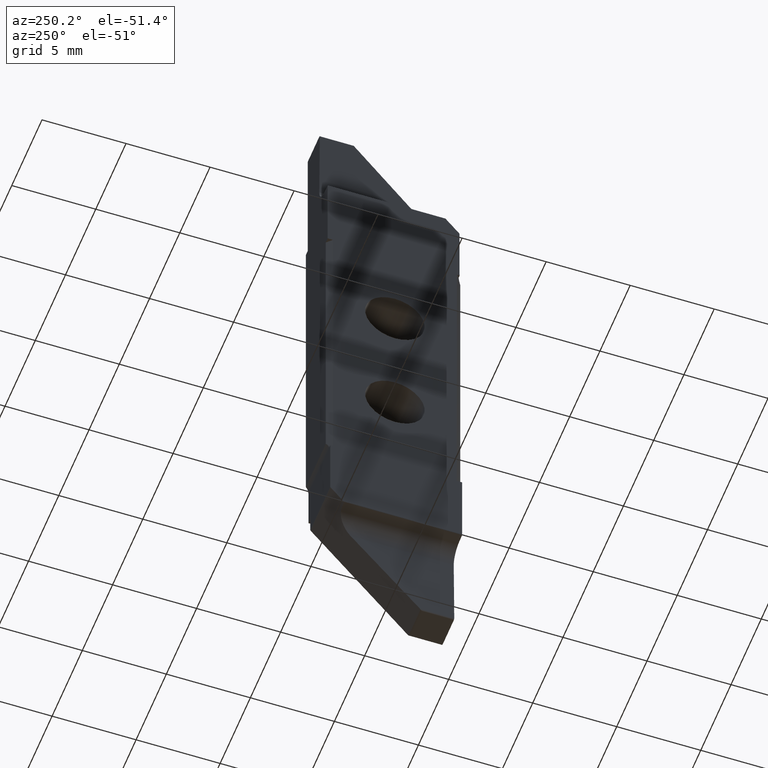
[diagram: clean part render]
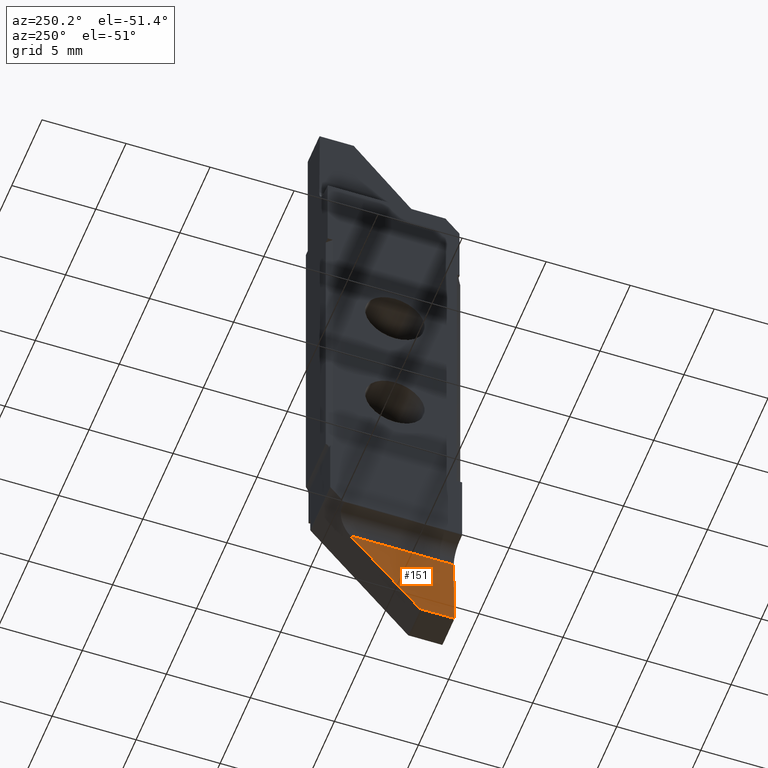
[diagram: same view with one face highlighted and labeled with its STEP entity id]
A machine part, auxiliary view. The second image highlights one B-rep face of the part: STEP entity #151.
In plain terms, the highlighted planar face has unit normal (0.9998, 0, -0.0175).
Its self-contained STEP definition (entity closure, byte-faithful):
#151 = ADVANCED_FACE ( 'NONE', ( #1334 ), #515, .F. ) ;
#161 = VERTEX_POINT ( 'NONE', #553 ) ;
#196 = VERTEX_POINT ( 'NONE', #1098 ) ;
#202 = VERTEX_POINT ( 'NONE', #838 ) ;
#295 = VERTEX_POINT ( 'NONE', #818 ) ;
#332 = EDGE_CURVE ( 'NONE', #196, #295, #928, .T. ) ;
#382 = VECTOR ( 'NONE', #518, 1000.000000000000000 ) ;
#419 = CARTESIAN_POINT ( 'NONE',  ( 1.404730389569310800, -4.000000000000000000, -14.00000000000000200 ) ) ;
#462 = CARTESIAN_POINT ( 'NONE',  ( 1.386970691753576900, 3.006177553973360600, -15.01745240643728800 ) ) ;
#477 = LINE ( 'NONE', #826, #1222 ) ;
#498 = VECTOR ( 'NONE', #958, 1000.000000000000100 ) ;
#515 = PLANE ( 'NONE',  #950 ) ;
#518 = DIRECTION ( 'NONE',  ( 0.0000000000000000000, 1.000000000000000000, 0.0000000000000000000 ) ) ;
#553 = CARTESIAN_POINT ( 'NONE',  ( 1.301420775825264100, -4.000000000000000000, -19.91860380748501700 ) ) ;
#557 = DIRECTION ( 'NONE',  ( 0.01745240643728355000, 0.0000000000000000000, 0.9998476951563911600 ) ) ;
#586 = VECTOR ( 'NONE', #1191, 1000.000000000000200 ) ;
#679 = ORIENTED_EDGE ( 'NONE', *, *, #1241, .T. ) ;
#693 = ORIENTED_EDGE ( 'NONE', *, *, #1356, .T. ) ;
#699 = ORIENTED_EDGE ( 'NONE', *, *, #1327, .F. ) ;
#720 = DIRECTION ( 'NONE',  ( 0.9998476951563912700, 0.0000000000000000000, -0.01745240643728355300 ) ) ;
#804 = DIRECTION ( 'NONE',  ( -0.0000000000000000000, -1.000000000000000000, -0.0000000000000000000 ) ) ;
#818 = CARTESIAN_POINT ( 'NONE',  ( 1.386970691753576900, 2.152433614991401200, -15.01745240643729000 ) ) ;
#826 = CARTESIAN_POINT ( 'NONE',  ( 1.301420775825264100, -4.000000000000000000, -19.91860380748501700 ) ) ;
#828 = ORIENTED_EDGE ( 'NONE', *, *, #332, .T. ) ;
#838 = CARTESIAN_POINT ( 'NONE',  ( 1.301420775825264100, -1.960120717971741700, -19.91860380748501700 ) ) ;
#928 = LINE ( 'NONE', #462, #382 ) ;
#950 = AXIS2_PLACEMENT_3D ( 'NONE', #419, #720, #557 ) ;
#958 = DIRECTION ( 'NONE',  ( -0.01745240643728355000, 0.0000000000000000000, -0.9998476951563911600 ) ) ;
#1014 = CARTESIAN_POINT ( 'NONE',  ( 1.404730389569310800, -4.000000000000000000, -14.00000000000000200 ) ) ;
#1098 = CARTESIAN_POINT ( 'NONE',  ( 1.386970691753576900, -4.000000000000000000, -15.01745240643728800 ) ) ;
#1155 = LINE ( 'NONE', #1014, #498 ) ;
#1191 = DIRECTION ( 'NONE',  ( -0.01337016029944014200, -0.6427301543808625600, -0.7659759705520270400 ) ) ;
#1196 = CARTESIAN_POINT ( 'NONE',  ( 1.299984334818221400, -2.029173289484597300, -20.00089745766333100 ) ) ;
#1222 = VECTOR ( 'NONE', #804, 1000.000000000000000 ) ;
#1226 = EDGE_LOOP ( 'NONE', ( #679, #693, #699, #828 ) ) ;
#1241 = EDGE_CURVE ( 'NONE', #295, #202, #1268, .T. ) ;
#1268 = LINE ( 'NONE', #1196, #586 ) ;
#1327 = EDGE_CURVE ( 'NONE', #196, #161, #1155, .T. ) ;
#1334 = FACE_OUTER_BOUND ( 'NONE', #1226, .T. ) ;
#1356 = EDGE_CURVE ( 'NONE', #202, #161, #477, .T. ) ;